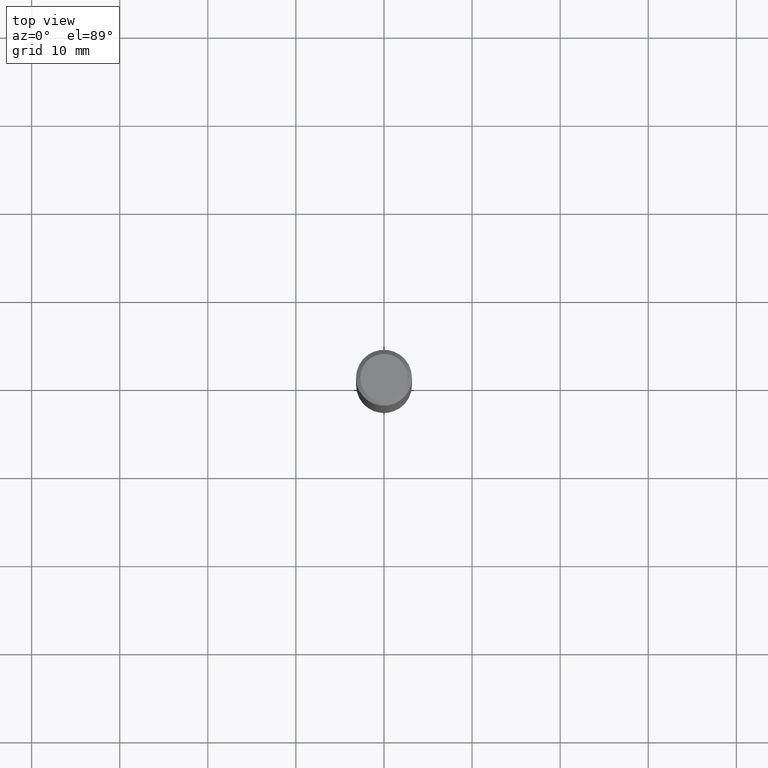
[diagram: clean part render]
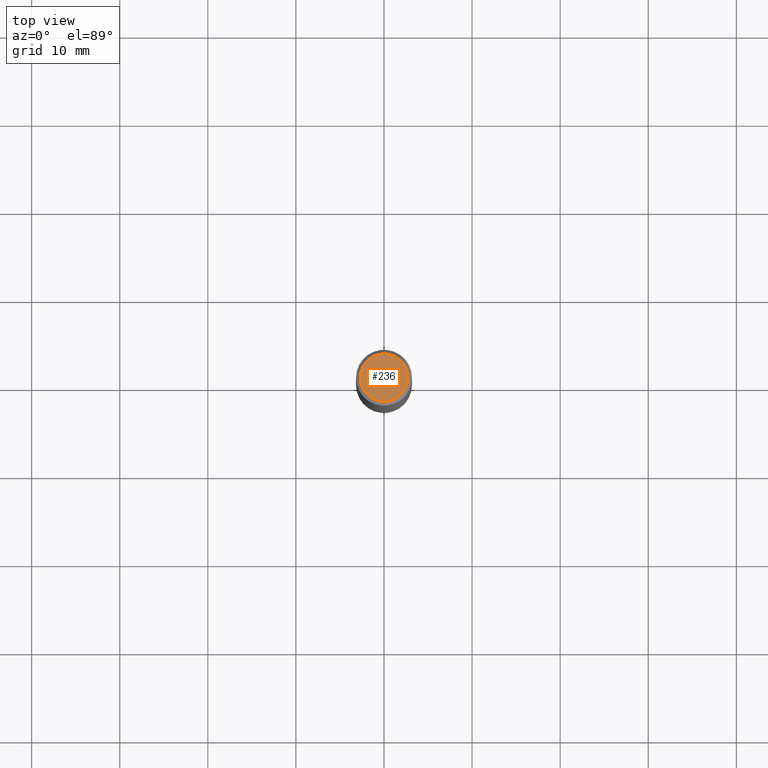
[diagram: same view with one face highlighted and labeled with its STEP entity id]
A machine part, top view. The second image highlights one B-rep face of the part: STEP entity #236.
In plain terms, the highlighted planar face has unit normal (0, -0, -1).
Its self-contained STEP definition (entity closure, byte-faithful):
#29 = ORIENTED_EDGE ( 'NONE', *, *, #428, .T. ) ;
#95 = EDGE_CURVE ( 'NONE', #307, #162, #131, .T. ) ;
#113 = AXIS2_PLACEMENT_3D ( 'NONE', #430, #203, #443 ) ;
#126 = EDGE_LOOP ( 'NONE', ( #29, #195 ) ) ;
#128 = PLANE ( 'NONE',  #113 ) ;
#131 = CIRCLE ( 'NONE', #261, 0.1062499999999999972 ) ;
#135 = CARTESIAN_POINT ( 'NONE',  ( -0.1062499999999999972, 7.746724220558198188E-16, 6.505936120465015526E-18 ) ) ;
#161 = FACE_OUTER_BOUND ( 'NONE', #126, .T. ) ;
#162 = VERTEX_POINT ( 'NONE', #135 ) ;
#195 = ORIENTED_EDGE ( 'NONE', *, *, #95, .T. ) ;
#203 = DIRECTION ( 'NONE',  ( 2.438088387897960049E-29, -3.491481338843145188E-15, -1.000000000000000000 ) ) ;
#231 = CIRCLE ( 'NONE', #424, 0.1062499999999999972 ) ;
#236 = ADVANCED_FACE ( 'NONE', ( #161 ), #128, .F. ) ;
#261 = AXIS2_PLACEMENT_3D ( 'NONE', #387, #473, #353 ) ;
#307 = VERTEX_POINT ( 'NONE', #313 ) ;
#313 = CARTESIAN_POINT ( 'NONE',  ( 0.1062499999999999972, -8.259777185439879685E-16, 6.505936120475800733E-18 ) ) ;
#320 = CARTESIAN_POINT ( 'NONE',  ( -1.591006383764330940E-46, 2.271535455632768948E-32, 6.505936120470318766E-18 ) ) ;
#353 = DIRECTION ( 'NONE',  ( 1.000000000000000000, -6.982962677686266711E-15, 4.875930095424100059E-29 ) ) ;
#387 = CARTESIAN_POINT ( 'NONE',  ( -1.591006383764330940E-46, 2.271535455632768948E-32, 6.505936120470318766E-18 ) ) ;
#424 = AXIS2_PLACEMENT_3D ( 'NONE', #320, #472, #427 ) ;
#427 = DIRECTION ( 'NONE',  ( 1.000000000000000000, -6.982962677686266711E-15, 4.875930095424100059E-29 ) ) ;
#428 = EDGE_CURVE ( 'NONE', #162, #307, #231, .T. ) ;
#430 = CARTESIAN_POINT ( 'NONE',  ( -7.955031918821654702E-47, 1.135767727816384474E-32, 3.252968060235159383E-18 ) ) ;
#443 = DIRECTION ( 'NONE',  ( -1.000000000000000000, 6.982962677686265922E-15, -4.876176775795935793E-29 ) ) ;
#472 = DIRECTION ( 'NONE',  ( -2.445468806185136597E-29, 3.491481338843145583E-15, 1.000000000000000000 ) ) ;
#473 = DIRECTION ( 'NONE',  ( -2.445468806185136597E-29, 3.491481338843145583E-15, 1.000000000000000000 ) ) ;